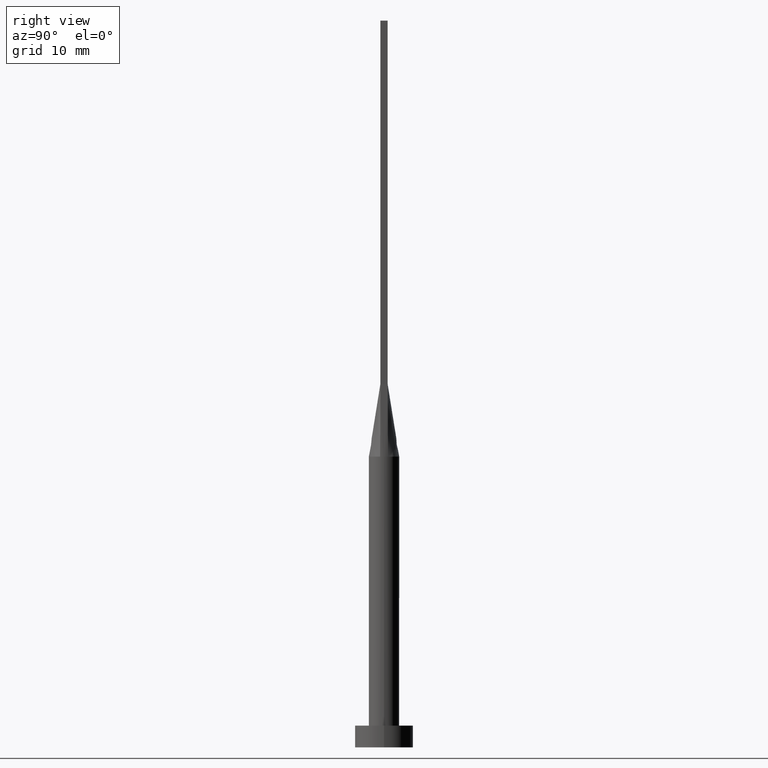
[diagram: clean part render]
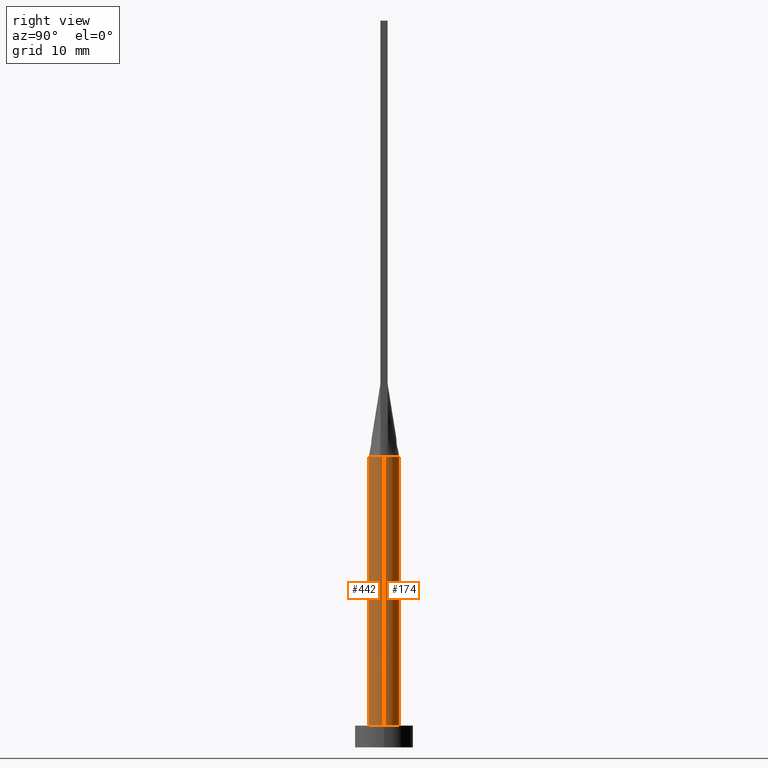
[diagram: same view with one multi-face feature highlighted, each face labeled with its STEP entity id]
A machine part, right view. The highlighted faces form ONE feature: a constant-radius fillet chain: 2 tangent blend faces with common blend radius 2.1 mm. The faces share edges in the B-rep.
Their STEP definitions:
[1] entity #174 (Cylinder):
#10 = ORIENTED_EDGE ( 'NONE', *, *, #207, .F. ) ;
#15 = CARTESIAN_POINT ( 'NONE',  ( -2.031019593402089818, 0.5344793603115657321, 40.00000000000000000 ) ) ;
#18 = CIRCLE ( 'NONE', #88, 2.100000000000000089 ) ;
#21 = CARTESIAN_POINT ( 'NONE',  ( 2.030996101999494652, 0.5344731476277209126, 40.00000000000000000 ) ) ;
#30 = EDGE_CURVE ( 'NONE', #139, #576, #64, .T. ) ;
#46 = CARTESIAN_POINT ( 'NONE',  ( -2.100000000000000089, 0.000000000000000000, 40.00000000000000000 ) ) ;
#54 = DIRECTION ( 'NONE',  ( 1.000000000000000000, 0.000000000000000000, 0.000000000000000000 ) ) ;
#55 = CARTESIAN_POINT ( 'NONE',  ( 1.235326090059014614, 1.714395692508636770, 40.00000000000002132 ) ) ;
#56 = EDGE_CURVE ( 'NONE', #565, #223, #485, .T. ) ;
#57 = CARTESIAN_POINT ( 'NONE',  ( -1.021961681204346384, 1.852908961101259022, 39.99999999999998579 ) ) ;
#64 = B_SPLINE_CURVE_WITH_KNOTS ( 'NONE', 3,
 ( #21, #472, #144, #515, #239, #55, #422, #178, #373, #241, #423, #57, #182, #268, #549, #232, #465, #15 ),
 .UNSPECIFIED., .F., .F.,
 ( 4, 2, 2, 2, 2, 2, 2, 2, 4 ),
 ( 0.000000000000000000, 0.1250000000000000278, 0.2500000000000000555, 0.3750000000000001110, 0.5000000000000000000, 0.6250000000000000000, 0.7500000000000000000, 0.8750000000000001110, 1.000000000000000000 ),
 .UNSPECIFIED. ) ;
#66 = DIRECTION ( 'NONE',  ( 0.000000000000000000, 0.000000000000000000, 1.000000000000000000 ) ) ;
#73 = VECTOR ( 'NONE', #399, 1000.000000000000000 ) ;
#76 = FACE_OUTER_BOUND ( 'NONE', #580, .T. ) ;
#88 = AXIS2_PLACEMENT_3D ( 'NONE', #111, #66, #245 ) ;
#91 = ORIENTED_EDGE ( 'NONE', *, *, #30, .F. ) ;
#108 = DIRECTION ( 'NONE',  ( -0.000000000000000000, -0.000000000000000000, -1.000000000000000000 ) ) ;
#111 = CARTESIAN_POINT ( 'NONE',  ( 0.000000000000000000, 0.000000000000000000, 40.00000000000000000 ) ) ;
#117 = CARTESIAN_POINT ( 'NONE',  ( -2.031019593402089818, 0.5344793603115657321, 40.00000000000000000 ) ) ;
#130 = EDGE_CURVE ( 'NONE', #576, #385, #18, .T. ) ;
#139 = VERTEX_POINT ( 'NONE', #157 ) ;
#142 = VECTOR ( 'NONE', #149, 1000.000000000000000 ) ;
#144 = CARTESIAN_POINT ( 'NONE',  ( 1.920830191244603746, 0.8725264301372623876, 40.00000000000000000 ) ) ;
#149 = DIRECTION ( 'NONE',  ( -0.000000000000000000, -0.000000000000000000, -1.000000000000000000 ) ) ;
#157 = CARTESIAN_POINT ( 'NONE',  ( 2.030996101999494652, 0.5344731476277209126, 40.00000000000000000 ) ) ;
#166 = VERTEX_POINT ( 'NONE', #528 ) ;
#170 = AXIS2_PLACEMENT_3D ( 'NONE', #521, #108, #446 ) ;
#174 = ADVANCED_FACE ( 'NONE', ( #76 ), #257, .T. ) ;
#178 = CARTESIAN_POINT ( 'NONE',  ( 0.5389299406762297906, 2.046272663899431077, 40.00000000000000000 ) ) ;
#182 = CARTESIAN_POINT ( 'NONE',  ( -1.235326090059014836, 1.714395692508636326, 40.00000000000000000 ) ) ;
#207 = EDGE_CURVE ( 'NONE', #385, #223, #211, .T. ) ;
#211 = LINE ( 'NONE', #46, #73 ) ;
#213 = ORIENTED_EDGE ( 'NONE', *, *, #394, .T. ) ;
#223 = VERTEX_POINT ( 'NONE', #361 ) ;
#232 = CARTESIAN_POINT ( 'NONE',  ( -1.920830191244604412, 0.8725264301372623876, 40.00000000000000711 ) ) ;
#239 = CARTESIAN_POINT ( 'NONE',  ( 1.583604922800830428, 1.399063468093436624, 40.00000000000000000 ) ) ;
#241 = CARTESIAN_POINT ( 'NONE',  ( -0.2698109971861040179, 2.100000000000000089, 40.00000000000000711 ) ) ;
#245 = DIRECTION ( 'NONE',  ( 1.000000000000000000, 0.000000000000000000, 0.000000000000000000 ) ) ;
#257 = CYLINDRICAL_SURFACE ( 'NONE', #170, 2.100000000000000089 ) ;
#265 = ORIENTED_EDGE ( 'NONE', *, *, #130, .F. ) ;
#268 = CARTESIAN_POINT ( 'NONE',  ( -1.583604922800830428, 1.399063468093436402, 40.00000000000000000 ) ) ;
#269 = ORIENTED_EDGE ( 'NONE', *, *, #323, .F. ) ;
#288 = AXIS2_PLACEMENT_3D ( 'NONE', #483, #349, #487 ) ;
#295 = CIRCLE ( 'NONE', #475, 2.100000000000000089 ) ;
#316 = ORIENTED_EDGE ( 'NONE', *, *, #56, .T. ) ;
#317 = DIRECTION ( 'NONE',  ( 0.000000000000000000, 0.000000000000000000, 1.000000000000000000 ) ) ;
#323 = EDGE_CURVE ( 'NONE', #166, #139, #295, .T. ) ;
#349 = DIRECTION ( 'NONE',  ( 0.000000000000000000, 0.000000000000000000, 1.000000000000000000 ) ) ;
#361 = CARTESIAN_POINT ( 'NONE',  ( -2.100000000000000089, 0.000000000000000000, 3.000000000000000000 ) ) ;
#373 = CARTESIAN_POINT ( 'NONE',  ( 0.2698109971861041290, 2.100000000000000089, 39.99999999999999289 ) ) ;
#385 = VERTEX_POINT ( 'NONE', #451 ) ;
#394 = EDGE_CURVE ( 'NONE', #166, #565, #533, .T. ) ;
#399 = DIRECTION ( 'NONE',  ( -0.000000000000000000, -0.000000000000000000, -1.000000000000000000 ) ) ;
#422 = CARTESIAN_POINT ( 'NONE',  ( 1.021961681204346606, 1.852908961101259244, 40.00000000000000711 ) ) ;
#423 = CARTESIAN_POINT ( 'NONE',  ( -0.5389299406762299016, 2.046272663899431965, 39.99999999999999289 ) ) ;
#446 = DIRECTION ( 'NONE',  ( -1.000000000000000000, 0.000000000000000000, 0.000000000000000000 ) ) ;
#451 = CARTESIAN_POINT ( 'NONE',  ( -2.100000000000000089, -1.080980291041873360E-16, 40.00000000000000711 ) ) ;
#465 = CARTESIAN_POINT ( 'NONE',  ( -1.987786580065029174, 0.6981017315960602598, 39.99999999999999289 ) ) ;
#472 = CARTESIAN_POINT ( 'NONE',  ( 1.987786580065029174, 0.6981017315960605929, 40.00000000000000000 ) ) ;
#475 = AXIS2_PLACEMENT_3D ( 'NONE', #548, #317, #54 ) ;
#480 = CARTESIAN_POINT ( 'NONE',  ( 2.100000000000000089, 2.571758278209441957E-16, 3.000000000000000000 ) ) ;
#483 = CARTESIAN_POINT ( 'NONE',  ( 0.000000000000000000, 0.000000000000000000, 3.000000000000000000 ) ) ;
#485 = CIRCLE ( 'NONE', #288, 2.100000000000000089 ) ;
#487 = DIRECTION ( 'NONE',  ( 1.000000000000000000, 0.000000000000000000, 0.000000000000000000 ) ) ;
#515 = CARTESIAN_POINT ( 'NONE',  ( 1.719043754744862040, 1.223020672007445464, 40.00000000000001421 ) ) ;
#521 = CARTESIAN_POINT ( 'NONE',  ( 0.000000000000000000, 0.000000000000000000, 40.00000000000000000 ) ) ;
#528 = CARTESIAN_POINT ( 'NONE',  ( 2.100000000000000089, 3.372022381799045987E-17, 40.00000000000000711 ) ) ;
#533 = LINE ( 'NONE', #563, #142 ) ;
#548 = CARTESIAN_POINT ( 'NONE',  ( 0.000000000000000000, 0.000000000000000000, 40.00000000000000000 ) ) ;
#549 = CARTESIAN_POINT ( 'NONE',  ( -1.719043754744861596, 1.223020672007445242, 39.99999999999999289 ) ) ;
#563 = CARTESIAN_POINT ( 'NONE',  ( 2.100000000000000089, 2.571758278209441957E-16, 40.00000000000000000 ) ) ;
#565 = VERTEX_POINT ( 'NONE', #480 ) ;
#576 = VERTEX_POINT ( 'NONE', #117 ) ;
#580 = EDGE_LOOP ( 'NONE', ( #269, #213, #316, #10, #265, #91 ) ) ;
[2] entity #442 (Cylinder):
#14 = DIRECTION ( 'NONE',  ( 0.000000000000000000, 0.000000000000000000, 1.000000000000000000 ) ) ;
#20 = AXIS2_PLACEMENT_3D ( 'NONE', #415, #14, #86 ) ;
#31 = DIRECTION ( 'NONE',  ( 1.000000000000000000, 0.000000000000000000, 0.000000000000000000 ) ) ;
#41 = CARTESIAN_POINT ( 'NONE',  ( 0.000000000000000000, 0.000000000000000000, 40.00000000000000000 ) ) ;
#43 = ORIENTED_EDGE ( 'NONE', *, *, #394, .F. ) ;
#46 = CARTESIAN_POINT ( 'NONE',  ( -2.100000000000000089, 0.000000000000000000, 40.00000000000000000 ) ) ;
#53 = FACE_OUTER_BOUND ( 'NONE', #60, .T. ) ;
#60 = EDGE_LOOP ( 'NONE', ( #43, #496, #355, #227, #400, #546 ) ) ;
#61 = CIRCLE ( 'NONE', #395, 2.100000000000000089 ) ;
#65 = CIRCLE ( 'NONE', #20, 2.100000000000000089 ) ;
#73 = VECTOR ( 'NONE', #399, 1000.000000000000000 ) ;
#86 = DIRECTION ( 'NONE',  ( 1.000000000000000000, 0.000000000000000000, 0.000000000000000000 ) ) ;
#89 = CYLINDRICAL_SURFACE ( 'NONE', #364, 2.100000000000000089 ) ;
#105 = CIRCLE ( 'NONE', #233, 2.100000000000000089 ) ;
#115 = DIRECTION ( 'NONE',  ( 0.000000000000000000, 0.000000000000000000, 1.000000000000000000 ) ) ;
#135 = CIRCLE ( 'NONE', #276, 2.100000000000000089 ) ;
#136 = EDGE_CURVE ( 'NONE', #393, #166, #61, .T. ) ;
#141 = EDGE_CURVE ( 'NONE', #385, #460, #135, .T. ) ;
#142 = VECTOR ( 'NONE', #149, 1000.000000000000000 ) ;
#149 = DIRECTION ( 'NONE',  ( -0.000000000000000000, -0.000000000000000000, -1.000000000000000000 ) ) ;
#166 = VERTEX_POINT ( 'NONE', #528 ) ;
#171 = CARTESIAN_POINT ( 'NONE',  ( -2.031004407172260162, -0.5344754071304557153, 40.00000000000000000 ) ) ;
#205 = DIRECTION ( 'NONE',  ( 1.000000000000000000, 4.440892098500626951E-15, 0.000000000000000000 ) ) ;
#207 = EDGE_CURVE ( 'NONE', #385, #223, #211, .T. ) ;
#211 = LINE ( 'NONE', #46, #73 ) ;
#214 = CARTESIAN_POINT ( 'NONE',  ( 2.031027953490633031, -0.5344816358097418396, 40.00000000000000000 ) ) ;
#223 = VERTEX_POINT ( 'NONE', #361 ) ;
#227 = ORIENTED_EDGE ( 'NONE', *, *, #141, .F. ) ;
#229 = DIRECTION ( 'NONE',  ( -0.000000000000000000, -0.000000000000000000, -1.000000000000000000 ) ) ;
#233 = AXIS2_PLACEMENT_3D ( 'NONE', #566, #523, #497 ) ;
#276 = AXIS2_PLACEMENT_3D ( 'NONE', #432, #564, #31 ) ;
#302 = EDGE_CURVE ( 'NONE', #223, #565, #65, .T. ) ;
#355 = ORIENTED_EDGE ( 'NONE', *, *, #414, .F. ) ;
#361 = CARTESIAN_POINT ( 'NONE',  ( -2.100000000000000089, 0.000000000000000000, 3.000000000000000000 ) ) ;
#364 = AXIS2_PLACEMENT_3D ( 'NONE', #41, #229, #455 ) ;
#385 = VERTEX_POINT ( 'NONE', #451 ) ;
#393 = VERTEX_POINT ( 'NONE', #214 ) ;
#394 = EDGE_CURVE ( 'NONE', #166, #565, #533, .T. ) ;
#395 = AXIS2_PLACEMENT_3D ( 'NONE', #478, #115, #205 ) ;
#399 = DIRECTION ( 'NONE',  ( -0.000000000000000000, -0.000000000000000000, -1.000000000000000000 ) ) ;
#400 = ORIENTED_EDGE ( 'NONE', *, *, #207, .T. ) ;
#414 = EDGE_CURVE ( 'NONE', #460, #393, #105, .T. ) ;
#415 = CARTESIAN_POINT ( 'NONE',  ( 0.000000000000000000, 0.000000000000000000, 3.000000000000000000 ) ) ;
#432 = CARTESIAN_POINT ( 'NONE',  ( 0.000000000000000000, 0.000000000000000000, 40.00000000000000000 ) ) ;
#442 = ADVANCED_FACE ( 'NONE', ( #53 ), #89, .T. ) ;
#451 = CARTESIAN_POINT ( 'NONE',  ( -2.100000000000000089, -1.080980291041873360E-16, 40.00000000000000711 ) ) ;
#455 = DIRECTION ( 'NONE',  ( -1.000000000000000000, 0.000000000000000000, 0.000000000000000000 ) ) ;
#460 = VERTEX_POINT ( 'NONE', #171 ) ;
#478 = CARTESIAN_POINT ( 'NONE',  ( 0.000000000000000000, 0.000000000000000000, 40.00000000000000000 ) ) ;
#480 = CARTESIAN_POINT ( 'NONE',  ( 2.100000000000000089, 2.571758278209441957E-16, 3.000000000000000000 ) ) ;
#496 = ORIENTED_EDGE ( 'NONE', *, *, #136, .F. ) ;
#497 = DIRECTION ( 'NONE',  ( 1.000000000000000000, 0.000000000000000000, 0.000000000000000000 ) ) ;
#523 = DIRECTION ( 'NONE',  ( 0.000000000000000000, 0.000000000000000000, 1.000000000000000000 ) ) ;
#528 = CARTESIAN_POINT ( 'NONE',  ( 2.100000000000000089, 3.372022381799045987E-17, 40.00000000000000711 ) ) ;
#533 = LINE ( 'NONE', #563, #142 ) ;
#546 = ORIENTED_EDGE ( 'NONE', *, *, #302, .T. ) ;
#563 = CARTESIAN_POINT ( 'NONE',  ( 2.100000000000000089, 2.571758278209441957E-16, 40.00000000000000000 ) ) ;
#564 = DIRECTION ( 'NONE',  ( 0.000000000000000000, 0.000000000000000000, 1.000000000000000000 ) ) ;
#565 = VERTEX_POINT ( 'NONE', #480 ) ;
#566 = CARTESIAN_POINT ( 'NONE',  ( 0.000000000000000000, 0.000000000000000000, 40.00000000000000000 ) ) ;